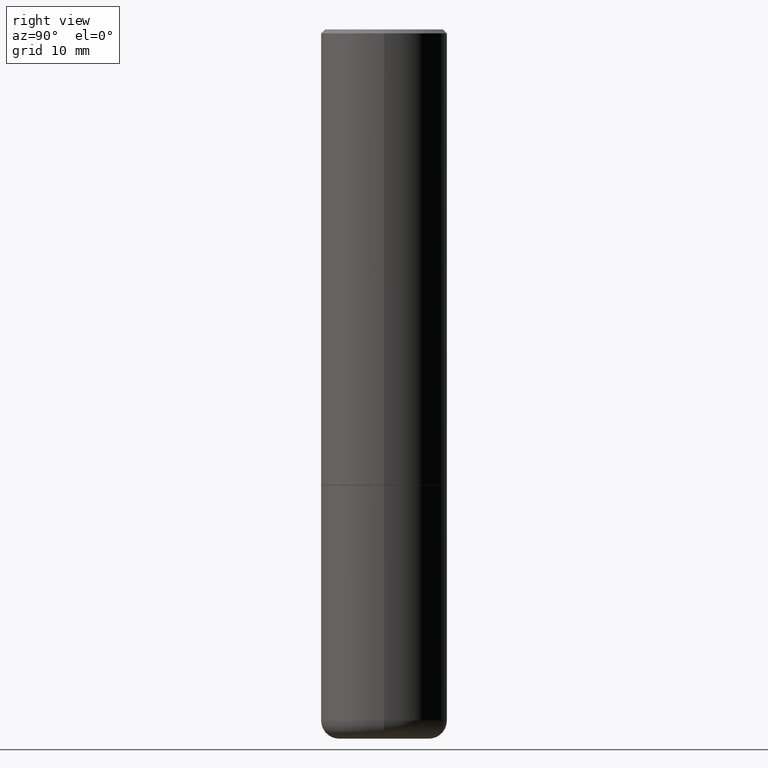
[diagram: clean part render]
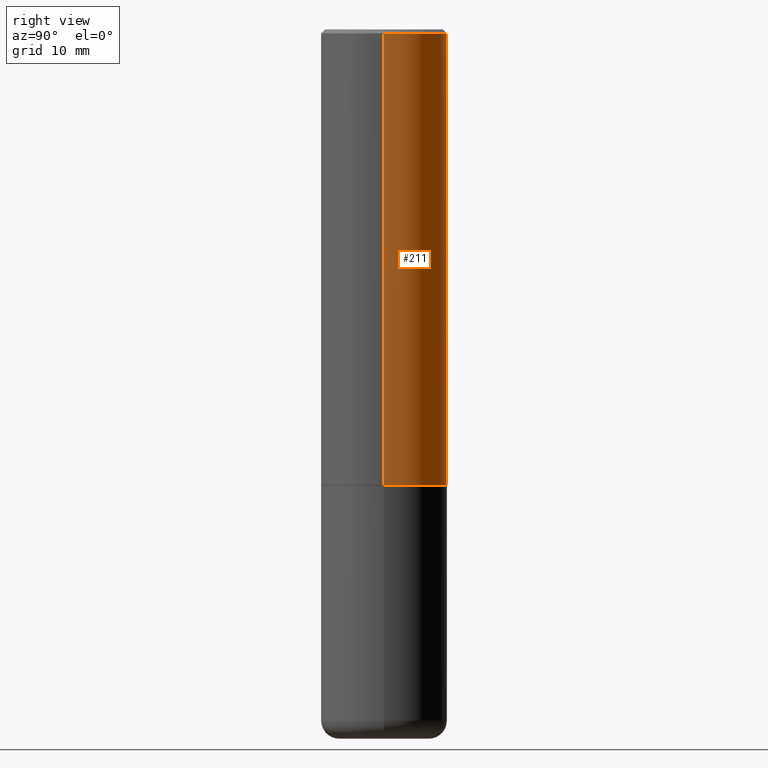
[diagram: same view with one face highlighted and labeled with its STEP entity id]
A machine part, right view. The second image highlights one B-rep face of the part: STEP entity #211.
In plain terms, the highlighted cylindrical surface (partial cylindrical patch) has radius 7.9375 mm, axis along (-0, 0, 1).
Its self-contained STEP definition (entity closure, byte-faithful):
#24 = AXIS2_PLACEMENT_3D ( 'NONE', #30, #97, #372 ) ;
#28 = CARTESIAN_POINT ( 'NONE',  ( 5.499859345110370619E-29, -7.852341531058232286E-15, -2.248999999999999222 ) ) ;
#30 = CARTESIAN_POINT ( 'NONE',  ( 4.890937612370278413E-31, -6.982962677686297772E-17, -0.02000000000000002123 ) ) ;
#31 = DIRECTION ( 'NONE',  ( -2.445468806185136597E-29, 3.491481338843145583E-15, 1.000000000000000000 ) ) ;
#34 = DIRECTION ( 'NONE',  ( -2.445468806185136877E-29, 3.491481338843145188E-15, 1.000000000000000000 ) ) ;
#57 = DIRECTION ( 'NONE',  ( -2.445468806185136597E-29, 3.491481338843145583E-15, 1.000000000000000000 ) ) ;
#64 = VECTOR ( 'NONE', #34, 39.37007874015748143 ) ;
#79 = ORIENTED_EDGE ( 'NONE', *, *, #225, .T. ) ;
#87 = VERTEX_POINT ( 'NONE', #170 ) ;
#90 = ORIENTED_EDGE ( 'NONE', *, *, #251, .F. ) ;
#95 = CIRCLE ( 'NONE', #24, 0.3124999999999998335 ) ;
#97 = DIRECTION ( 'NONE',  ( -2.445468806185136597E-29, 3.491481338843145583E-15, 1.000000000000000000 ) ) ;
#101 = VECTOR ( 'NONE', #345, 39.37007874015748143 ) ;
#104 = EDGE_LOOP ( 'NONE', ( #436, #79, #136, #90 ) ) ;
#105 = LINE ( 'NONE', #201, #64 ) ;
#136 = ORIENTED_EDGE ( 'NONE', *, *, #344, .F. ) ;
#145 = CARTESIAN_POINT ( 'NONE',  ( -0.3125000000000000000, -1.740639529667232739E-15, -2.248999999999999222 ) ) ;
#158 = VERTEX_POINT ( 'NONE', #266 ) ;
#164 = CIRCLE ( 'NONE', #441, 0.3125000000000000000 ) ;
#170 = CARTESIAN_POINT ( 'NONE',  ( 0.3125000000000000000, -1.003451736783519063E-14, -2.248999999999999222 ) ) ;
#174 = FACE_OUTER_BOUND ( 'NONE', #104, .T. ) ;
#183 = DIRECTION ( 'NONE',  ( 1.000000000000000000, -6.982962677686269077E-15, 0.000000000000000000 ) ) ;
#201 = CARTESIAN_POINT ( 'NONE',  ( -0.3124999999999998890, 2.220446049250312292E-15, -1.537167215704657391E-29 ) ) ;
#209 = VERTEX_POINT ( 'NONE', #232 ) ;
#211 = ADVANCED_FACE ( 'NONE', ( #174 ), #338, .T. ) ;
#225 = EDGE_CURVE ( 'NONE', #370, #158, #105, .T. ) ;
#232 = CARTESIAN_POINT ( 'NONE',  ( 0.3124999999999998335, -2.213735251080465334E-15, -0.02000000000000002123 ) ) ;
#235 = DIRECTION ( 'NONE',  ( 1.000000000000000000, -6.982962677686266711E-15, 4.876176775795935232E-29 ) ) ;
#241 = CARTESIAN_POINT ( 'NONE',  ( 0.3124999999999998890, -2.182175836776957558E-15, 1.523805242436229235E-29 ) ) ;
#251 = EDGE_CURVE ( 'NONE', #87, #209, #412, .T. ) ;
#261 = CARTESIAN_POINT ( 'NONE',  ( 0.000000000000000000, 0.000000000000000000, 0.000000000000000000 ) ) ;
#266 = CARTESIAN_POINT ( 'NONE',  ( -0.3124999999999998335, 2.112346210000093866E-15, -0.02000000000000002123 ) ) ;
#315 = AXIS2_PLACEMENT_3D ( 'NONE', #261, #31, #235 ) ;
#337 = EDGE_CURVE ( 'NONE', #87, #370, #164, .T. ) ;
#338 = CYLINDRICAL_SURFACE ( 'NONE', #315, 0.3124999999999998890 ) ;
#344 = EDGE_CURVE ( 'NONE', #209, #158, #95, .T. ) ;
#345 = DIRECTION ( 'NONE',  ( -2.445468806185136877E-29, 3.491481338843145188E-15, 1.000000000000000000 ) ) ;
#370 = VERTEX_POINT ( 'NONE', #145 ) ;
#372 = DIRECTION ( 'NONE',  ( 1.000000000000000000, -6.982962677686265133E-15, 0.000000000000000000 ) ) ;
#412 = LINE ( 'NONE', #241, #101 ) ;
#436 = ORIENTED_EDGE ( 'NONE', *, *, #337, .T. ) ;
#441 = AXIS2_PLACEMENT_3D ( 'NONE', #28, #57, #183 ) ;